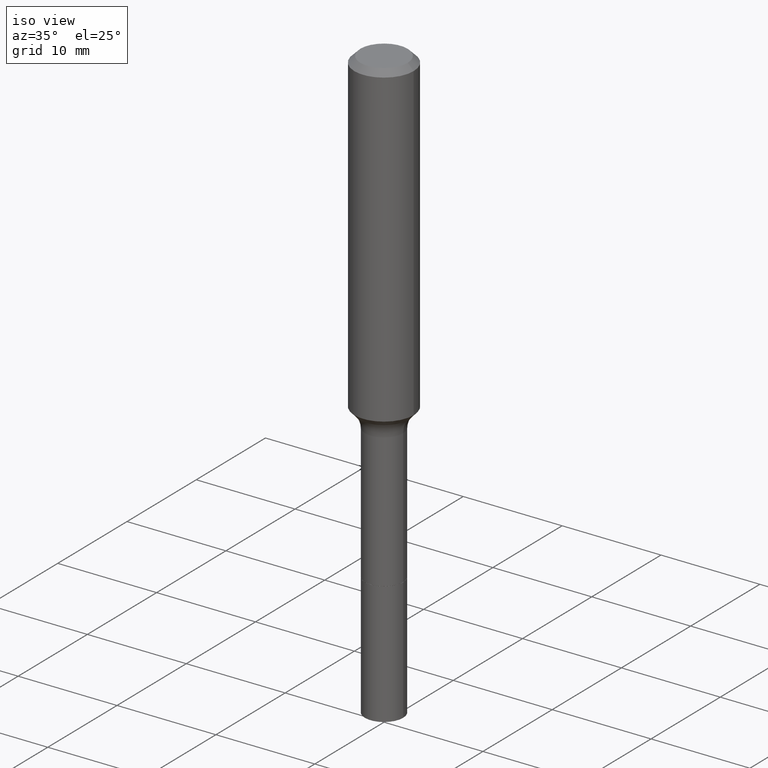
[diagram: clean part render]
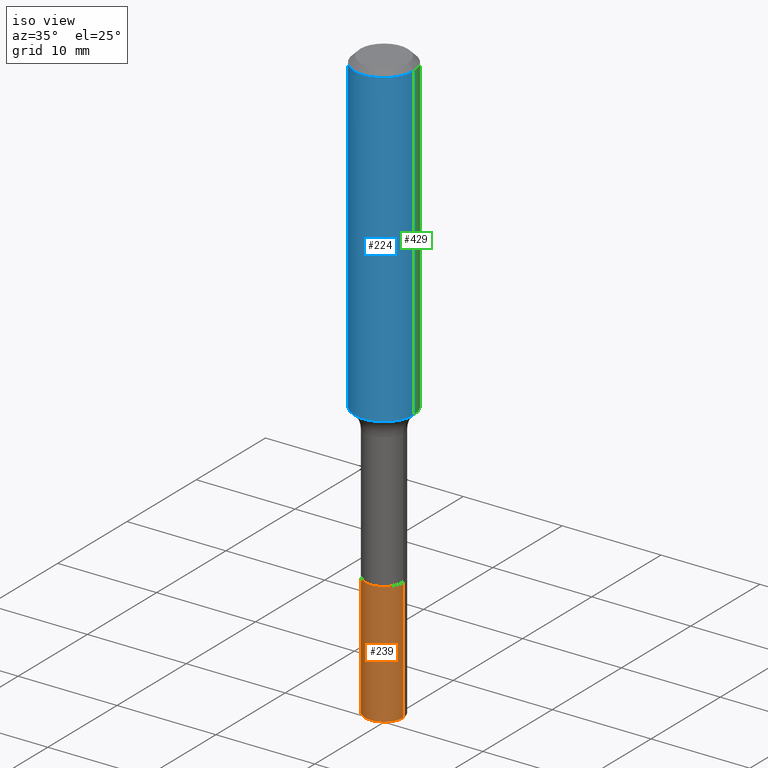
[diagram: same view with three faces highlighted in distinct colors, each labeled with its STEP entity id]
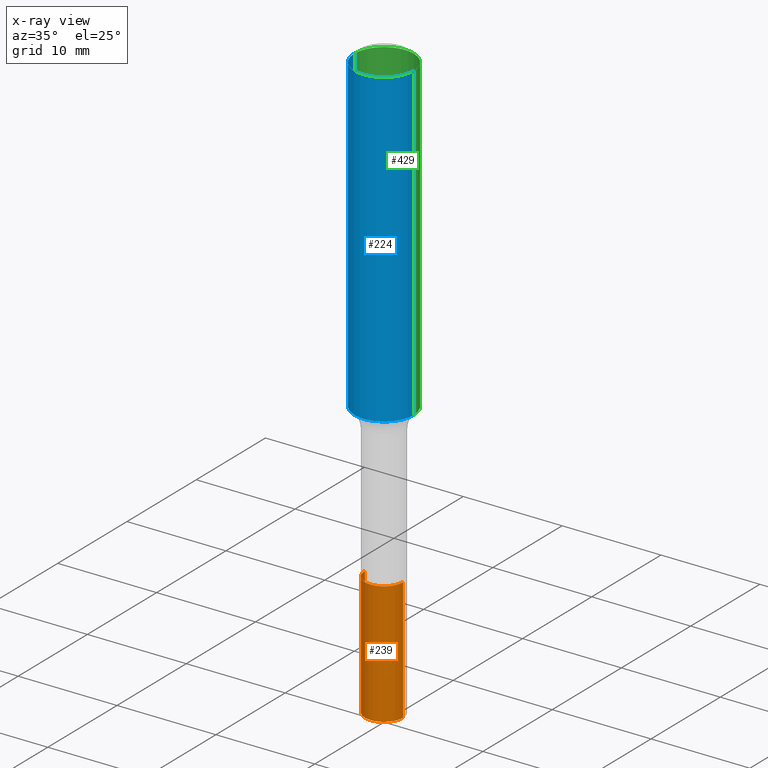
[diagram: x-ray of the same camera — body ghosted, the three highlighted faces saturated]
A machine part, iso view with three faces highlighted in distinct colors.
The next image is the same camera in x-ray (body ghosted, the three faces saturated) — at least one of them is partly hidden behind the body in this view.
Their STEP definitions:

[orange] entity #239 — the highlighted cylindrical surface (edge-blend (fillet) strip) has radius 1.9304 mm, axis along (-0, 0, 1).
#34 = VERTEX_POINT ( 'NONE', #463 ) ;
#42 = CARTESIAN_POINT ( 'NONE',  ( -0.07600000000000016465, -6.855643292759872188E-15, -2.362200000000000077 ) ) ;
#50 = DIRECTION ( 'NONE',  ( -2.445468806185136597E-29, 3.491481338843145583E-15, 1.000000000000000000 ) ) ;
#77 = AXIS2_PLACEMENT_3D ( 'NONE', #204, #50, #410 ) ;
#94 = EDGE_CURVE ( 'NONE', #168, #34, #121, .T. ) ;
#97 = FACE_OUTER_BOUND ( 'NONE', #400, .T. ) ;
#100 = LINE ( 'NONE', #465, #326 ) ;
#121 = LINE ( 'NONE', #438, #275 ) ;
#125 = DIRECTION ( 'NONE',  ( 1.000000000000000000, -6.982962677686267499E-15, 0.000000000000000000 ) ) ;
#137 = CARTESIAN_POINT ( 'NONE',  ( 0.07600000000000015077, -8.778282382119435644E-15, -2.362200000000000077 ) ) ;
#162 = ORIENTED_EDGE ( 'NONE', *, *, #403, .T. ) ;
#163 = CARTESIAN_POINT ( 'NONE',  ( 0.07600000000000001199, -7.074439488763979530E-15, -1.874199999999999866 ) ) ;
#168 = VERTEX_POINT ( 'NONE', #42 ) ;
#173 = DIRECTION ( 'NONE',  ( -2.445468806185136597E-29, 3.491481338843145583E-15, 1.000000000000000000 ) ) ;
#175 = CARTESIAN_POINT ( 'NONE',  ( 4.583297636552182524E-29, -6.543734325259823512E-15, -1.874199999999999866 ) ) ;
#185 = ORIENTED_EDGE ( 'NONE', *, *, #94, .F. ) ;
#193 = CIRCLE ( 'NONE', #516, 0.07600000000000001199 ) ;
#204 = CARTESIAN_POINT ( 'NONE',  ( 4.583297636552182524E-29, -6.543734325259823512E-15, -1.874199999999999866 ) ) ;
#239 = ADVANCED_FACE ( 'NONE', ( #97 ), #371, .T. ) ;
#241 = AXIS2_PLACEMENT_3D ( 'NONE', #329, #173, #125 ) ;
#268 = CIRCLE ( 'NONE', #241, 0.07600000000000015077 ) ;
#273 = VERTEX_POINT ( 'NONE', #163 ) ;
#275 = VECTOR ( 'NONE', #475, 39.37007874015748143 ) ;
#298 = DIRECTION ( 'NONE',  ( -2.445468806185136597E-29, 3.491481338843145583E-15, 1.000000000000000000 ) ) ;
#326 = VECTOR ( 'NONE', #499, 39.37007874015748143 ) ;
#328 = EDGE_CURVE ( 'NONE', #168, #434, #268, .T. ) ;
#329 = CARTESIAN_POINT ( 'NONE',  ( 5.776686413970529753E-29, -8.247577218615279626E-15, -2.362200000000000077 ) ) ;
#338 = DIRECTION ( 'NONE',  ( 1.000000000000000000, -6.982962677686267499E-15, 0.000000000000000000 ) ) ;
#362 = EDGE_CURVE ( 'NONE', #34, #273, #193, .T. ) ;
#371 = CYLINDRICAL_SURFACE ( 'NONE', #77, 0.07600000000000006750 ) ;
#400 = EDGE_LOOP ( 'NONE', ( #185, #472, #162, #474 ) ) ;
#403 = EDGE_CURVE ( 'NONE', #434, #273, #100, .T. ) ;
#410 = DIRECTION ( 'NONE',  ( 1.000000000000000000, -6.982962677686262766E-15, 0.000000000000000000 ) ) ;
#434 = VERTEX_POINT ( 'NONE', #137 ) ;
#438 = CARTESIAN_POINT ( 'NONE',  ( -0.07600000000000006750, -6.003721846082146892E-15, -1.874199999999999866 ) ) ;
#463 = CARTESIAN_POINT ( 'NONE',  ( -0.07600000000000001199, -6.855643292759874554E-15, -1.874199999999999866 ) ) ;
#465 = CARTESIAN_POINT ( 'NONE',  ( 0.07600000000000006750, -7.074439488763979530E-15, -1.874199999999999866 ) ) ;
#472 = ORIENTED_EDGE ( 'NONE', *, *, #328, .T. ) ;
#474 = ORIENTED_EDGE ( 'NONE', *, *, #362, .F. ) ;
#475 = DIRECTION ( 'NONE',  ( -2.445468806185136877E-29, 3.491481338843145188E-15, 1.000000000000000000 ) ) ;
#499 = DIRECTION ( 'NONE',  ( -2.445468806185136877E-29, 3.491481338843145188E-15, 1.000000000000000000 ) ) ;
#516 = AXIS2_PLACEMENT_3D ( 'NONE', #175, #298, #338 ) ;

[blue] entity #224 — the highlighted cylindrical surface (edge-blend (fillet) strip) has radius 2.9997 mm, axis along (-0, 0, 1).
#15 = EDGE_CURVE ( 'NONE', #494, #253, #190, .T. ) ;
#18 = LINE ( 'NONE', #339, #319 ) ;
#45 = CYLINDRICAL_SURFACE ( 'NONE', #101, 0.1181000000000000660 ) ;
#61 = AXIS2_PLACEMENT_3D ( 'NONE', #211, #288, #374 ) ;
#63 = EDGE_CURVE ( 'NONE', #253, #229, #447, .T. ) ;
#69 = AXIS2_PLACEMENT_3D ( 'NONE', #80, #321, #120 ) ;
#80 = CARTESIAN_POINT ( 'NONE',  ( 5.776197320209328408E-31, -8.246878922347560526E-17, -0.02362000000000014435 ) ) ;
#95 = CARTESIAN_POINT ( 'NONE',  ( -0.1180999999999999966, -1.404405874613040682E-15, -0.02362000000000014435 ) ) ;
#101 = AXIS2_PLACEMENT_3D ( 'NONE', #199, #160, #412 ) ;
#120 = DIRECTION ( 'NONE',  ( 1.000000000000000000, -6.982962677686266711E-15, 0.000000000000000000 ) ) ;
#140 = VERTEX_POINT ( 'NONE', #405 ) ;
#160 = DIRECTION ( 'NONE',  ( -2.445468806185136597E-29, 3.491481338843145583E-15, 1.000000000000000000 ) ) ;
#182 = VECTOR ( 'NONE', #303, 39.37007874015748143 ) ;
#188 = ORIENTED_EDGE ( 'NONE', *, *, #15, .F. ) ;
#190 = LINE ( 'NONE', #352, #182 ) ;
#199 = CARTESIAN_POINT ( 'NONE',  ( 0.000000000000000000, 0.000000000000000000, 0.000000000000000000 ) ) ;
#203 = ORIENTED_EDGE ( 'NONE', *, *, #446, .T. ) ;
#211 = CARTESIAN_POINT ( 'NONE',  ( 3.085057791948405945E-29, -4.404644901867963878E-15, -1.261540439258765467 ) ) ;
#224 = ADVANCED_FACE ( 'NONE', ( #406 ), #45, .T. ) ;
#229 = VERTEX_POINT ( 'NONE', #247 ) ;
#247 = CARTESIAN_POINT ( 'NONE',  ( 0.1180999999999999966, -9.071566814582237199E-16, -0.02362000000000014435 ) ) ;
#252 = CARTESIAN_POINT ( 'NONE',  ( -0.1181000000000001493, -3.565493930935284892E-15, -1.261540439258765467 ) ) ;
#253 = VERTEX_POINT ( 'NONE', #95 ) ;
#288 = DIRECTION ( 'NONE',  ( -2.445468806185136597E-29, 3.491481338843145583E-15, 1.000000000000000000 ) ) ;
#290 = DIRECTION ( 'NONE',  ( -2.445468806185136877E-29, 3.491481338843145188E-15, 1.000000000000000000 ) ) ;
#303 = DIRECTION ( 'NONE',  ( -2.445468806185136877E-29, 3.491481338843145188E-15, 1.000000000000000000 ) ) ;
#319 = VECTOR ( 'NONE', #290, 39.37007874015748143 ) ;
#321 = DIRECTION ( 'NONE',  ( -2.445468806185136597E-29, 3.491481338843145583E-15, 1.000000000000000000 ) ) ;
#324 = EDGE_LOOP ( 'NONE', ( #188, #388, #203, #393 ) ) ;
#339 = CARTESIAN_POINT ( 'NONE',  ( 0.1181000000000000660, -8.246878922347485584E-16, 5.758764772215003944E-30 ) ) ;
#352 = CARTESIAN_POINT ( 'NONE',  ( -0.1181000000000000660, 8.391509709326787887E-16, -5.809262341591047287E-30 ) ) ;
#358 = EDGE_CURVE ( 'NONE', #494, #140, #376, .T. ) ;
#374 = DIRECTION ( 'NONE',  ( 1.000000000000000000, -6.982962677686264344E-15, 0.000000000000000000 ) ) ;
#376 = CIRCLE ( 'NONE', #61, 0.1181000000000001493 ) ;
#388 = ORIENTED_EDGE ( 'NONE', *, *, #358, .T. ) ;
#393 = ORIENTED_EDGE ( 'NONE', *, *, #63, .F. ) ;
#405 = CARTESIAN_POINT ( 'NONE',  ( 0.1181000000000001493, -5.229332794102712929E-15, -1.261540439258765467 ) ) ;
#406 = FACE_OUTER_BOUND ( 'NONE', #324, .T. ) ;
#412 = DIRECTION ( 'NONE',  ( 1.000000000000000000, -6.982962677686266711E-15, 4.876176775795936353E-29 ) ) ;
#446 = EDGE_CURVE ( 'NONE', #140, #229, #18, .T. ) ;
#447 = CIRCLE ( 'NONE', #69, 0.1180999999999999966 ) ;
#494 = VERTEX_POINT ( 'NONE', #252 ) ;

[green] entity #429 — the highlighted cylindrical surface (edge-blend (fillet) strip) has radius 2.9997 mm, axis along (-0, 0, 1).
#15 = EDGE_CURVE ( 'NONE', #494, #253, #190, .T. ) ;
#18 = LINE ( 'NONE', #339, #319 ) ;
#19 = DIRECTION ( 'NONE',  ( -2.445468806185136597E-29, 3.491481338843145583E-15, 1.000000000000000000 ) ) ;
#23 = CYLINDRICAL_SURFACE ( 'NONE', #104, 0.1181000000000000660 ) ;
#68 = DIRECTION ( 'NONE',  ( 1.000000000000000000, -6.982962677686266711E-15, 0.000000000000000000 ) ) ;
#74 = CIRCLE ( 'NONE', #141, 0.1181000000000001493 ) ;
#76 = EDGE_LOOP ( 'NONE', ( #132, #423, #432, #106 ) ) ;
#95 = CARTESIAN_POINT ( 'NONE',  ( -0.1180999999999999966, -1.404405874613040682E-15, -0.02362000000000014435 ) ) ;
#104 = AXIS2_PLACEMENT_3D ( 'NONE', #142, #19, #424 ) ;
#106 = ORIENTED_EDGE ( 'NONE', *, *, #446, .F. ) ;
#108 = CARTESIAN_POINT ( 'NONE',  ( 3.085057791948405945E-29, -4.404644901867963878E-15, -1.261540439258765467 ) ) ;
#132 = ORIENTED_EDGE ( 'NONE', *, *, #417, .T. ) ;
#140 = VERTEX_POINT ( 'NONE', #405 ) ;
#141 = AXIS2_PLACEMENT_3D ( 'NONE', #108, #263, #178 ) ;
#142 = CARTESIAN_POINT ( 'NONE',  ( 0.000000000000000000, 0.000000000000000000, 0.000000000000000000 ) ) ;
#178 = DIRECTION ( 'NONE',  ( 1.000000000000000000, -6.982962677686264344E-15, 0.000000000000000000 ) ) ;
#182 = VECTOR ( 'NONE', #303, 39.37007874015748143 ) ;
#190 = LINE ( 'NONE', #352, #182 ) ;
#218 = CARTESIAN_POINT ( 'NONE',  ( 5.776197320209328408E-31, -8.246878922347560526E-17, -0.02362000000000014435 ) ) ;
#229 = VERTEX_POINT ( 'NONE', #247 ) ;
#247 = CARTESIAN_POINT ( 'NONE',  ( 0.1180999999999999966, -9.071566814582237199E-16, -0.02362000000000014435 ) ) ;
#252 = CARTESIAN_POINT ( 'NONE',  ( -0.1181000000000001493, -3.565493930935284892E-15, -1.261540439258765467 ) ) ;
#253 = VERTEX_POINT ( 'NONE', #95 ) ;
#263 = DIRECTION ( 'NONE',  ( -2.445468806185136597E-29, 3.491481338843145583E-15, 1.000000000000000000 ) ) ;
#290 = DIRECTION ( 'NONE',  ( -2.445468806185136877E-29, 3.491481338843145188E-15, 1.000000000000000000 ) ) ;
#303 = DIRECTION ( 'NONE',  ( -2.445468806185136877E-29, 3.491481338843145188E-15, 1.000000000000000000 ) ) ;
#306 = DIRECTION ( 'NONE',  ( -2.445468806185136597E-29, 3.491481338843145583E-15, 1.000000000000000000 ) ) ;
#319 = VECTOR ( 'NONE', #290, 39.37007874015748143 ) ;
#339 = CARTESIAN_POINT ( 'NONE',  ( 0.1181000000000000660, -8.246878922347485584E-16, 5.758764772215003944E-30 ) ) ;
#341 = FACE_OUTER_BOUND ( 'NONE', #76, .T. ) ;
#352 = CARTESIAN_POINT ( 'NONE',  ( -0.1181000000000000660, 8.391509709326787887E-16, -5.809262341591047287E-30 ) ) ;
#355 = AXIS2_PLACEMENT_3D ( 'NONE', #218, #306, #68 ) ;
#405 = CARTESIAN_POINT ( 'NONE',  ( 0.1181000000000001493, -5.229332794102712929E-15, -1.261540439258765467 ) ) ;
#417 = EDGE_CURVE ( 'NONE', #140, #494, #74, .T. ) ;
#423 = ORIENTED_EDGE ( 'NONE', *, *, #15, .T. ) ;
#424 = DIRECTION ( 'NONE',  ( 1.000000000000000000, -6.982962677686266711E-15, 4.876176775795936353E-29 ) ) ;
#429 = ADVANCED_FACE ( 'NONE', ( #341 ), #23, .T. ) ;
#432 = ORIENTED_EDGE ( 'NONE', *, *, #435, .F. ) ;
#435 = EDGE_CURVE ( 'NONE', #229, #253, #464, .T. ) ;
#446 = EDGE_CURVE ( 'NONE', #140, #229, #18, .T. ) ;
#464 = CIRCLE ( 'NONE', #355, 0.1180999999999999966 ) ;
#494 = VERTEX_POINT ( 'NONE', #252 ) ;